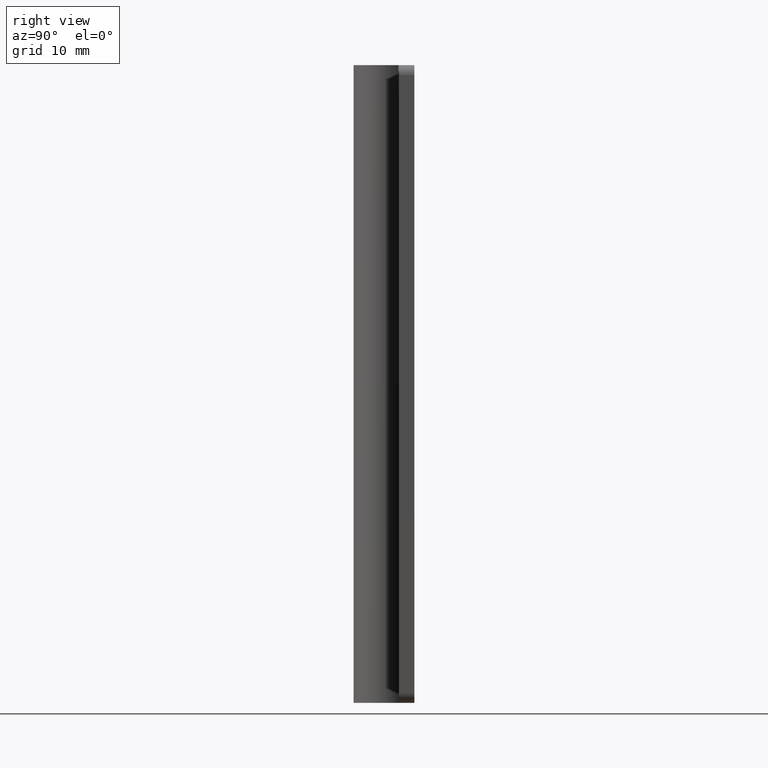
[diagram: clean part render]
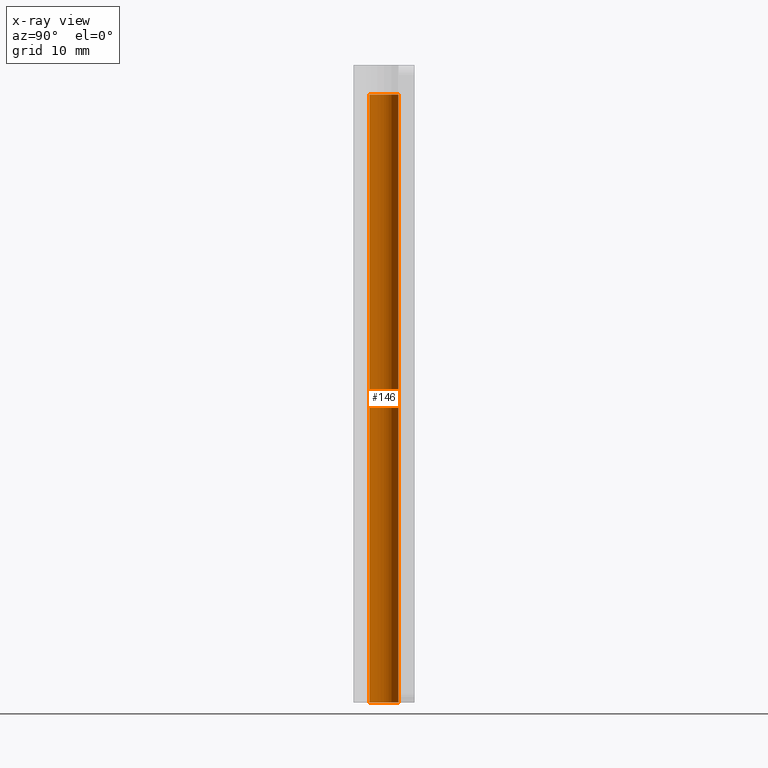
[diagram: x-ray — body ghosted, one internal face saturated and labeled with its STEP entity id]
A machine part, right view, then the same camera in x-ray: the body is ghosted and one INTERNAL B-rep face — a face not visible from any outside direction — is saturated and labeled: STEP entity #146.
In plain terms, the highlighted face is a freeform B-spline surface patch.
Its self-contained STEP definition (entity closure, byte-faithful):
#44=CARTESIAN_POINT('',(-0.177051355170571,1.489514316344215,63.549999867222027));
#45=CARTESIAN_POINT('',(-0.134422095375432,1.494581450062790,63.549999867222020));
#46=CARTESIAN_POINT('',(-0.091572810949825,1.497202224569833,63.549999867222013));
#47=CARTESIAN_POINT('',(1.405629413620008,1.588775035519658,63.549999867222027));
#48=CARTESIAN_POINT('',(1.497202224569833,0.091572810949825,63.549999867222013));
#49=CARTESIAN_POINT('',(1.588775035519658,-1.405629413620008,63.549999867222027));
#50=CARTESIAN_POINT('',(0.091572810949825,-1.497202224569833,63.549999867222013));
#51=CARTESIAN_POINT('',(-0.177051355170571,1.489514316344215,-1.588749996680548));
#52=CARTESIAN_POINT('',(-0.134422095375432,1.494581450062790,-1.588749996680548));
#53=CARTESIAN_POINT('',(-0.091572810949825,1.497202224569833,-1.588749996680548));
#54=CARTESIAN_POINT('',(1.405629413620008,1.588775035519658,-1.588749996680547));
#55=CARTESIAN_POINT('',(1.497202224569833,0.091572810949825,-1.588749996680548));
#56=CARTESIAN_POINT('',(1.588775035519658,-1.405629413620008,-1.588749996680547));
#57=CARTESIAN_POINT('',(0.091572810949825,-1.497202224569833,-1.588749996680548));
#65=(BOUNDED_SURFACE()B_SPLINE_SURFACE(2,1,((#44,#51),(#45,#52),(#46,#53),(#47,#54),(#48,#55),(#49,#56),(#50,#57)),.UNSPECIFIED.,.F.,.F.,.U.)B_SPLINE_SURFACE_WITH_KNOTS((3,2,2,3),(2,2),(3.078760800517997,3.141592653589793,4.712388980384690,6.283185307179586),(0.0,65.138749863902575),.UNSPECIFIED.)GEOMETRIC_REPRESENTATION_ITEM()RATIONAL_B_SPLINE_SURFACE(((0.977505800795127,0.977505800795127),(0.988284271247462,0.988284271247462),(1.0,1.0),(0.707106781186548,0.707106781186548),(1.0,1.0),(0.707106781186548,0.707106781186548),(1.0,1.0)))REPRESENTATION_ITEM('')SURFACE());
#66=CARTESIAN_POINT('',(-0.177051356984702,1.489514329717257,61.999999870460499));
#67=VERTEX_POINT('',#66);
#68=CARTESIAN_POINT('',(1.500000053974745,0.0,61.999999870460492));
#69=VERTEX_POINT('',#68);
#70=CARTESIAN_POINT('',(-0.177051356984702,1.489514329717257,61.999999870460506));
#71=CARTESIAN_POINT('',(-0.088836182898226,1.500000053974745,61.999999870460485));
#72=CARTESIAN_POINT('',(0.0,1.500000053974745,61.999999870460492));
#73=CARTESIAN_POINT('',(1.500000053974745,1.500000053974745,61.999999870460492));
#74=CARTESIAN_POINT('',(1.500000053974745,0.0,61.999999870460492));
#82=(BOUNDED_CURVE()B_SPLINE_CURVE(2,(#70,#71,#72,#73,#74),.UNSPECIFIED.,.F.,.U.)B_SPLINE_CURVE_WITH_KNOTS((3,2,3),(0.229562473465400,0.250000000000000,0.500000000000000),.UNSPECIFIED.)CURVE()GEOMETRIC_REPRESENTATION_ITEM()RATIONAL_B_SPLINE_CURVE((0.956026754089405,0.976055948274783,1.0,0.707106781186547,1.0))REPRESENTATION_ITEM(''));
#83=EDGE_CURVE('',#67,#69,#82,.T.);
#84=ORIENTED_EDGE('',*,*,#83,.T.);
#85=CARTESIAN_POINT('',(0.091572812151219,-1.497202238015256,61.999999870460492));
#86=VERTEX_POINT('',#85);
#87=CARTESIAN_POINT('',(1.500000053974745,0.0,61.999999870460492));
#88=CARTESIAN_POINT('',(1.500000053974745,-1.411059150419799,61.999999870460492));
#89=CARTESIAN_POINT('',(0.091572812151219,-1.497202238015256,61.999999870460492));
#97=(BOUNDED_CURVE()B_SPLINE_CURVE(2,(#87,#88,#89),.UNSPECIFIED.,.F.,.U.)B_SPLINE_CURVE_WITH_KNOTS((3,3),(0.500000000000000,0.739332962154930),.UNSPECIFIED.)CURVE()GEOMETRIC_REPRESENTATION_ITEM()RATIONAL_B_SPLINE_CURVE((1.0,0.719603993385137,0.976072041486662))REPRESENTATION_ITEM(''));
#98=EDGE_CURVE('',#69,#86,#97,.T.);
#99=ORIENTED_EDGE('',*,*,#98,.T.);
#100=CARTESIAN_POINT('',(0.091572810503680,-1.497202211078220,-1.665335E-015));
#101=VERTEX_POINT('',#100);
#102=CARTESIAN_POINT('',(0.091572812151219,-1.497202238015256,61.999999870460492));
#103=CARTESIAN_POINT('',(0.091572810503680,-1.497202211078220,-1.665335E-015));
#104=QUASI_UNIFORM_CURVE('',1,(#102,#103),.UNSPECIFIED.,.F.,.U.);
#105=EDGE_CURVE('',#86,#101,#104,.T.);
#106=ORIENTED_EDGE('',*,*,#105,.T.);
#107=CARTESIAN_POINT('',(1.500000000000000,0.0,0.0));
#108=VERTEX_POINT('',#107);
#109=CARTESIAN_POINT('',(1.500000000000000,0.0,0.0));
#110=CARTESIAN_POINT('',(1.500000000000000,-1.411059099645410,0.0));
#111=CARTESIAN_POINT('',(0.091572810503680,-1.497202211078220,-1.665335E-015));
#119=(BOUNDED_CURVE()B_SPLINE_CURVE(2,(#109,#110,#111),.UNSPECIFIED.,.F.,.U.)B_SPLINE_CURVE_WITH_KNOTS((3,3),(0.500000000000000,0.739332962154928),.UNSPECIFIED.)CURVE()GEOMETRIC_REPRESENTATION_ITEM()RATIONAL_B_SPLINE_CURVE((1.0,0.719603993385140,0.976072041486657))REPRESENTATION_ITEM(''));
#120=EDGE_CURVE('',#108,#101,#119,.T.);
#121=ORIENTED_EDGE('',*,*,#120,.F.);
#122=CARTESIAN_POINT('',(-0.177051353799265,1.489514302918539,-1.703657E-015));
#123=VERTEX_POINT('',#122);
#124=CARTESIAN_POINT('',(-0.177051353799265,1.489514302918540,-1.703657E-015));
#125=CARTESIAN_POINT('',(-0.088836179701616,1.500000000000000,0.0));
#126=CARTESIAN_POINT('',(0.0,1.500000000000000,0.0));
#127=CARTESIAN_POINT('',(1.500000000000000,1.500000000000000,0.0));
#128=CARTESIAN_POINT('',(1.500000000000000,0.0,0.0));
#136=(BOUNDED_CURVE()B_SPLINE_CURVE(2,(#124,#125,#126,#127,#128),.UNSPECIFIED.,.F.,.U.)B_SPLINE_CURVE_WITH_KNOTS((3,2,3),(0.229562473465401,0.250000000000000,0.500000000000000),.UNSPECIFIED.)CURVE()GEOMETRIC_REPRESENTATION_ITEM()RATIONAL_B_SPLINE_CURVE((0.956026754089407,0.976055948274784,1.0,0.707106781186548,1.0))REPRESENTATION_ITEM(''));
#137=EDGE_CURVE('',#123,#108,#136,.T.);
#138=ORIENTED_EDGE('',*,*,#137,.F.);
#139=CARTESIAN_POINT('',(-0.177051356984702,1.489514329717257,61.999999870460499));
#140=CARTESIAN_POINT('',(-0.177051353799265,1.489514302918539,-1.703657E-015));
#141=QUASI_UNIFORM_CURVE('',1,(#139,#140),.UNSPECIFIED.,.F.,.U.);
#142=EDGE_CURVE('',#67,#123,#141,.T.);
#143=ORIENTED_EDGE('',*,*,#142,.F.);
#144=EDGE_LOOP('',(#84,#99,#106,#121,#138,#143));
#145=FACE_OUTER_BOUND('',#144,.T.);
#146=ADVANCED_FACE('',(#145),#65,.T.);